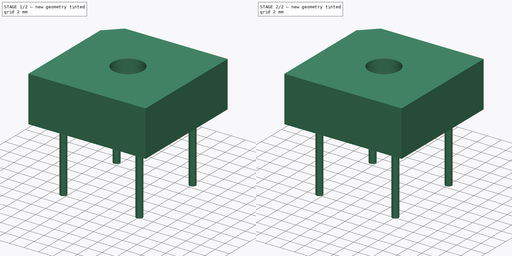
[diagram: build sequence overview — one tinted view per stage of 2, left to right]
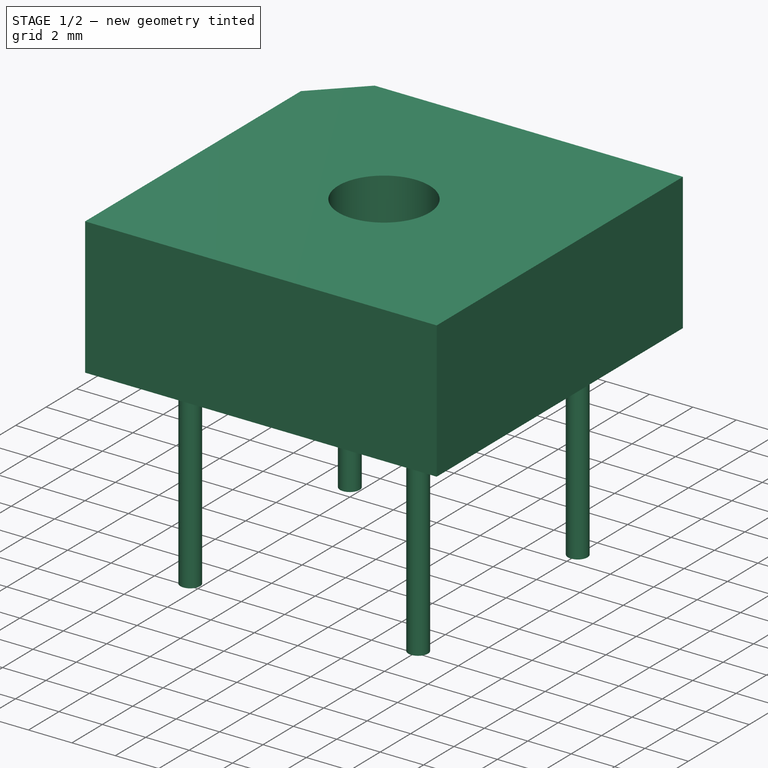
[diagram: stage 1 of 2 — iso view after this stage's code; geometry added in this stage tinted green]
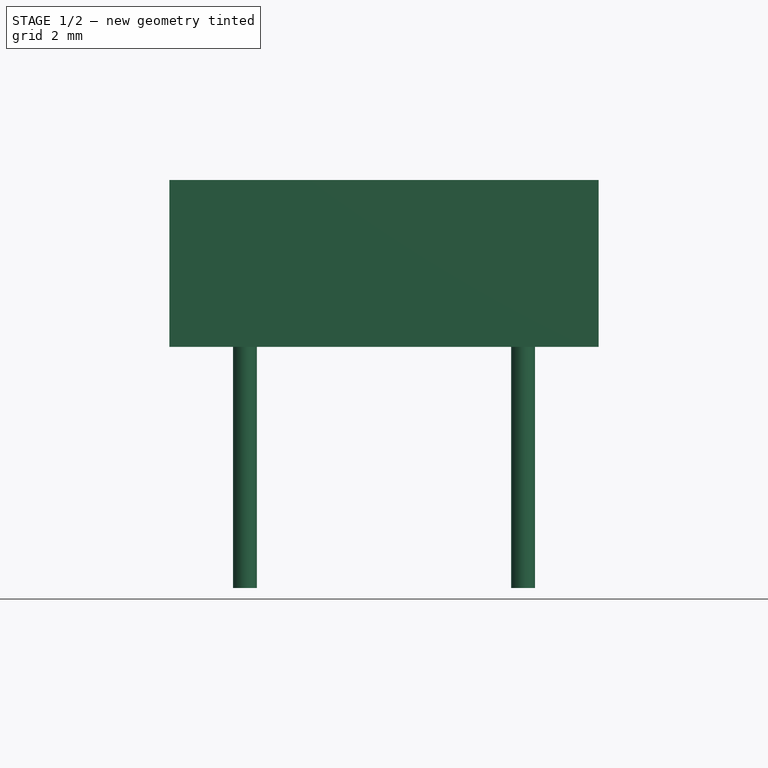
[diagram: stage 1 of 2 — front view after this stage's code; geometry added in this stage tinted green]
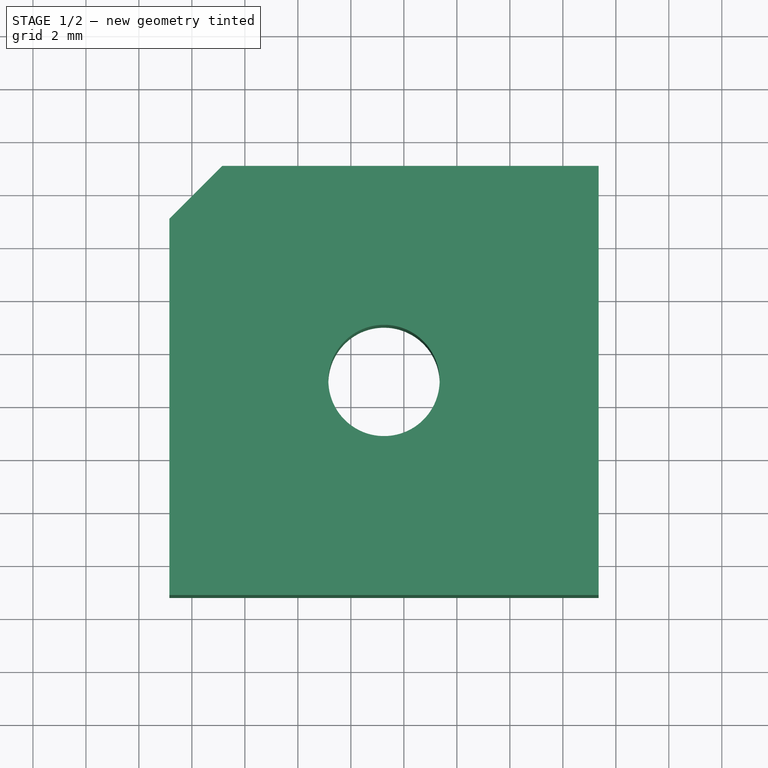
[diagram: stage 1 of 2 — top view after this stage's code; geometry added in this stage tinted green]
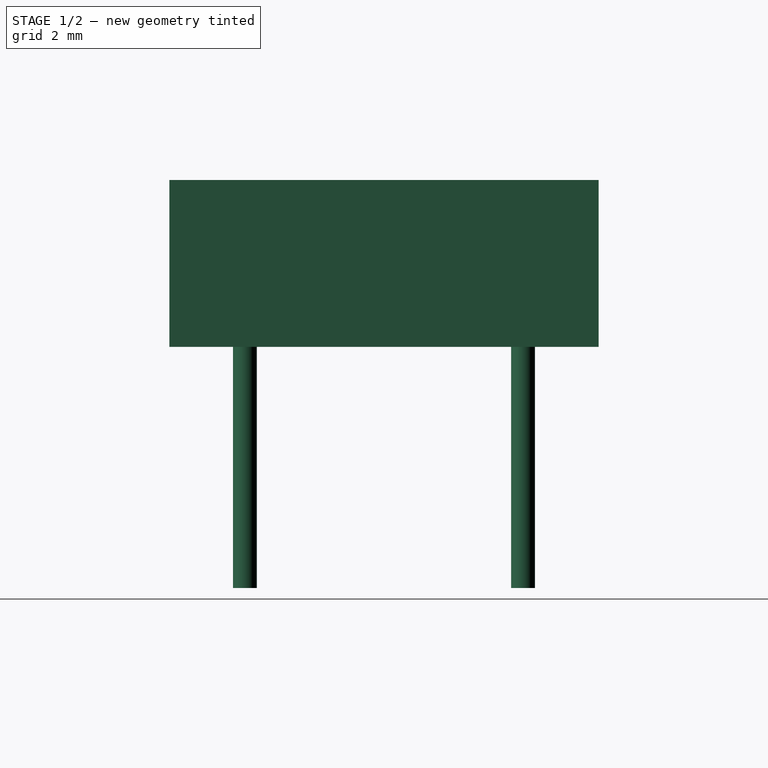
[diagram: stage 1 of 2 — right view after this stage's code; geometry added in this stage tinted green]
FCSTD DOCUMENT  (FreeCAD 0.16R6712 (Git))
Label: Diode_Bridge_Vishay_KBPC1
License: All rights reserved
LicenseURL: http://en.wikipedia.org/wiki/All_rights_reserved
objects: Part::Feature×3, Sketcher::SketchObject×2, PartDesign::Pad×2, App::DocumentObjectGroup×1, Part::MultiFuse×1
note: 10 computed .brp shape members not serialized (recipe doc carries the construction recipe); baked Part::Feature solids carry a one-line shape summary decoded from their .brp

FEATURE [Sketcher::SketchObject] Sketch
  Placement = pos=(0,0,1) rot=(0,0,1;0rad)
  sketch-geometry (8):
    g0: Circle CenterX=0 CenterY=0 CenterZ=0 NormalX=0 NormalY=0 NormalZ=1 Radius=0.45
    g1: Circle CenterX=10.5 CenterY=0 CenterZ=0 NormalX=0 NormalY=0 NormalZ=1 Radius=0.45
    g2: Circle CenterX=0 CenterY=-10.5 CenterZ=0 NormalX=0 NormalY=0 NormalZ=1 Radius=0.45
    g3: LineSegment [constr] StartX=0 StartY=0 StartZ=0 EndX=10.5 EndY=0 EndZ=0
    g4: LineSegment [constr] StartX=10.5 StartY=0 StartZ=0 EndX=10.5 EndY=-10.5 EndZ=0
    g5: LineSegment [constr] StartX=10.5 StartY=-10.5 StartZ=0 EndX=0 EndY=-10.5 EndZ=0
    g6: LineSegment [constr] StartX=0 StartY=-10.5 StartZ=0 EndX=0 EndY=0 EndZ=0
    g7: Circle CenterX=10.5 CenterY=-10.5 CenterZ=0 NormalX=0 NormalY=0 NormalZ=1 Radius=0.45
  constraints (21):
    c: Coincident(g0,g-1)
    c: PointOnObject(g1,g-1)
    c: PointOnObject(g2,g-2)
    c: Coincident(g3,g4)
    c: Coincident(g4,g5)
    c: Coincident(g5,g6)
    c: Coincident(g6,g3)
    c: Horizontal(g3)
    c: Horizontal(g5)
    c: Vertical(g4)
    c: Vertical(g6)
    c: Coincident(g3,g-1)
    c: Coincident(g1,g3)
    c: Coincident(g2,g5)
    c: Coincident(g7,g4)
    c: Equal(g7,g1)
    c: Equal(g1,g0)
    c: Equal(g0,g2)
    c: Radius(g1) = 0.45
    c: DistanceX(g3,g3) = 10.5
    c: DistanceY(g6,g6) = 10.5
FEATURE [PartDesign::Pad] Pad
  Length = 10
  Length2 = 100
  Placement = pos=(0,0,1) rot=(0,0,1;0rad)
  Reversed = true
  Sketch = -> Sketch
  Type = 0
FEATURE [Part::Feature] FusionAxisZ1  label="Z"
  shape: bbox 0.8 x 0.8 x 14 mm, 8 faces (baked)
FEATURE [Part::Feature] FusionAxisY1  label="Y"
  Placement = pos=(0,0,0.05) rot=(-1,0,0;1.5708rad)
  shape: bbox 0.8 x 14 x 0.8 mm, 8 faces (baked)
FEATURE [Part::Feature] FusionAxisX1  label="X"
  Placement = pos=(0,-0.05,0) rot=(0,1,0;1.5708rad)
  shape: bbox 14 x 0.8 x 0.8 mm, 8 faces (baked)
FEATURE [App::DocumentObjectGroup] axis
  Group = -> [FusionAxisZ1,FusionAxisY1,FusionAxisX1]
FEATURE [Sketcher::SketchObject] Sketch001
  Placement = pos=(0,0,0.1) rot=(0,0,1;0rad)
  expr: Constraints[13] = (16.2 - 10.5) / 2
  expr: Constraints[14] = (16.2 - 10.5) / 2
  sketch-geometry (8):
    g0: LineSegment StartX=-2.85 StartY=0.85 StartZ=0 EndX=-0.85 EndY=2.85 EndZ=0
    g1: LineSegment StartX=-0.85 StartY=2.85 StartZ=0 EndX=13.35 EndY=2.85 EndZ=0
    g2: LineSegment StartX=13.35 StartY=2.85 StartZ=0 EndX=13.35 EndY=-13.35 EndZ=0
    g3: LineSegment StartX=13.35 StartY=-13.35 StartZ=0 EndX=-2.85 EndY=-13.35 EndZ=0
    g4: LineSegment StartX=-2.85 StartY=-13.35 StartZ=0 EndX=-2.85 EndY=0.85 EndZ=0
    g5: LineSegment [constr] StartX=0 StartY=0 StartZ=0 EndX=13.35 EndY=-13.35 EndZ=0
    g6: LineSegment [constr] StartX=-2.85 StartY=-13.35 StartZ=0 EndX=13.35 EndY=2.85 EndZ=0
    g7: Circle CenterX=5.25 CenterY=-5.25 CenterZ=0 NormalX=0 NormalY=0 NormalZ=1 Radius=2.1
  constraints (22):
    c: Coincident(g1,g0)
    c: Horizontal(g1)
    c: Coincident(g2,g1)
    c: Vertical(g2)
    c: Coincident(g3,g2)
    c: Horizontal(g3)
    c: Coincident(g4,g3)
    c: Coincident(g4,g0)
    c: Vertical(g4)
    c: DistanceY(g2,g2) = 16.2
    c: Equal(g3,g2)
    c: Angle(g0,g1) = 2.35619
    c: DistanceY(g0,g0) = 2
    c: DistanceX(g0,g-1) = 2.85
    c: DistanceY(g-1,g0) = 2.85
    c: Coincident(g5,g-1)
    c: Coincident(g5,g2)
    c: Coincident(g6,g1)
    c: Coincident(g6,g3)
    c: PointOnObject(g7,g6)
    c: PointOnObject(g7,g5)
    c: Radius(g7) = 2.1
FEATURE [PartDesign::Pad] Pad001
  Length = 6.3
  Length2 = 100
  Placement = pos=(0,0,0.1) rot=(0,0,1;0rad)
  Sketch = -> Sketch001
  Type = 0
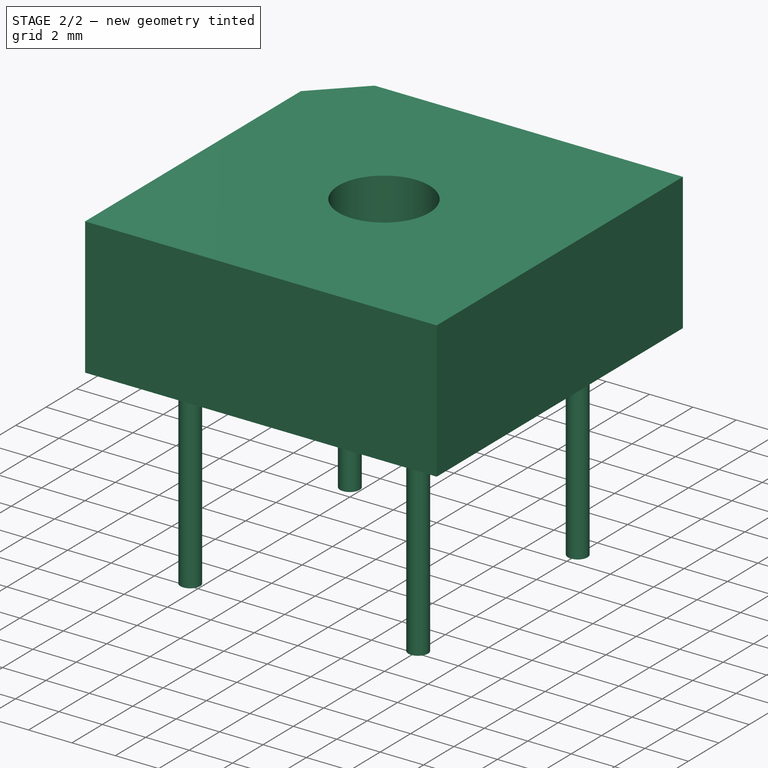
[diagram: stage 2 of 2 — iso view after this stage's code; geometry added in this stage tinted green]
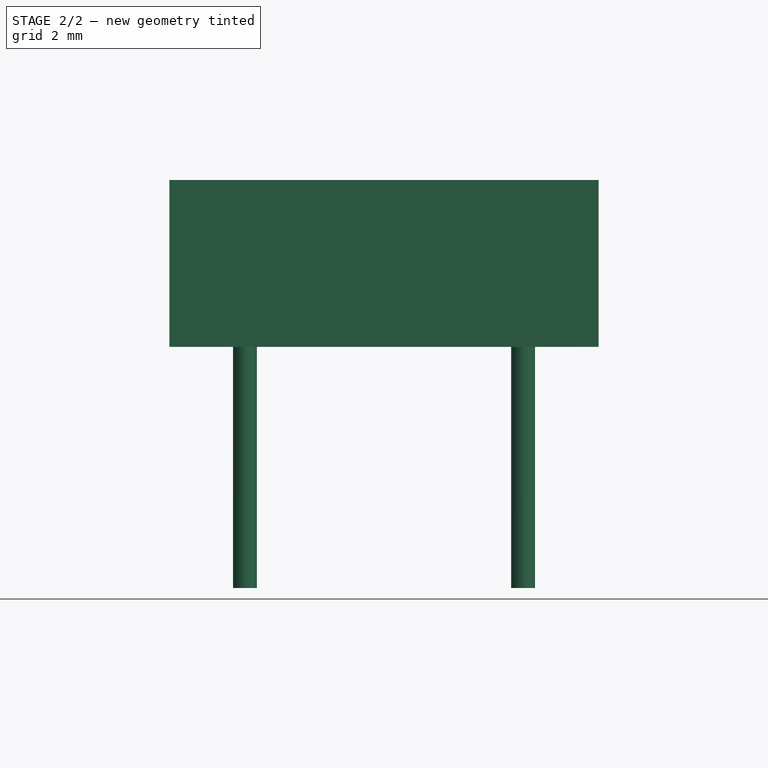
[diagram: stage 2 of 2 — front view after this stage's code; geometry added in this stage tinted green]
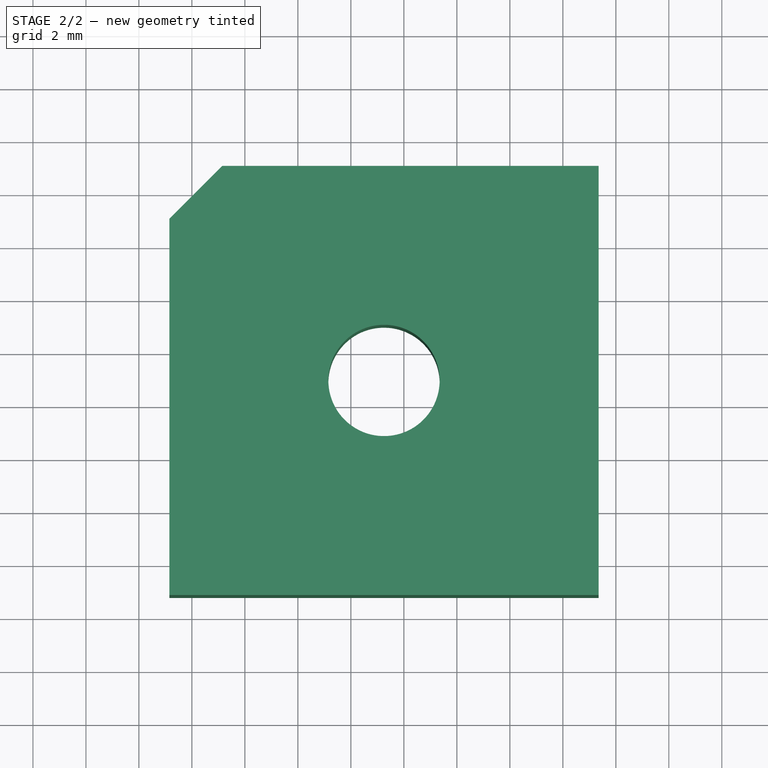
[diagram: stage 2 of 2 — top view after this stage's code; geometry added in this stage tinted green]
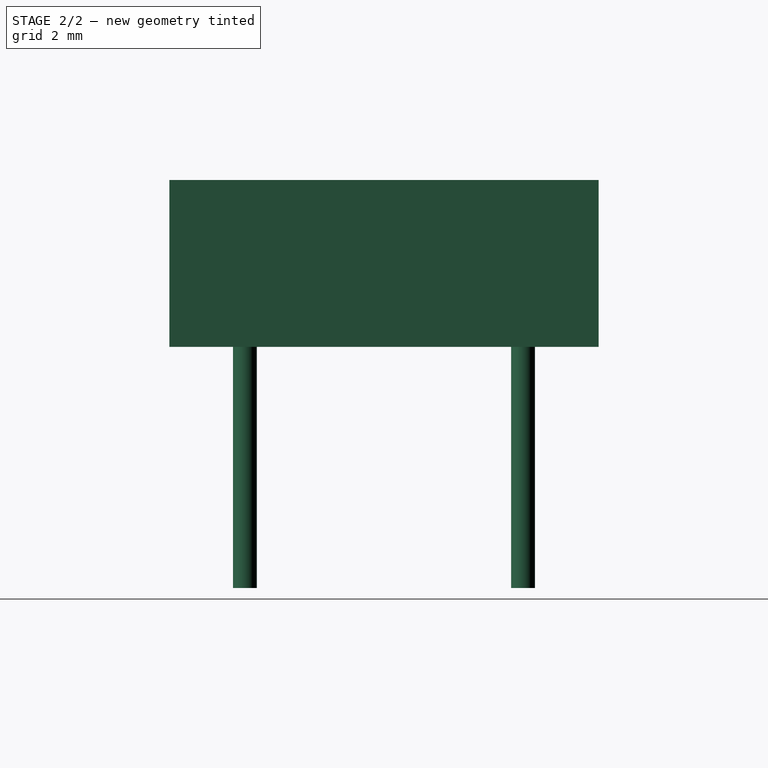
[diagram: stage 2 of 2 — right view after this stage's code; geometry added in this stage tinted green]
FEATURE [Part::MultiFuse] Pad001_mp_cp  label="Diode_Bridge_Vishay_KBPC1"
  Shapes = -> [Pad001,Pad]
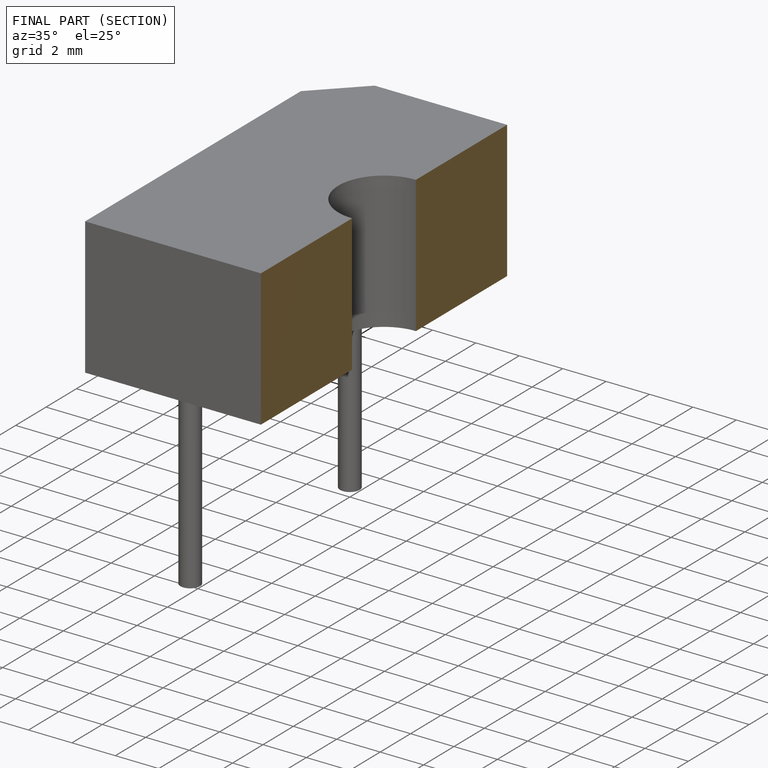
[diagram: finished part — half-section view (interior)]
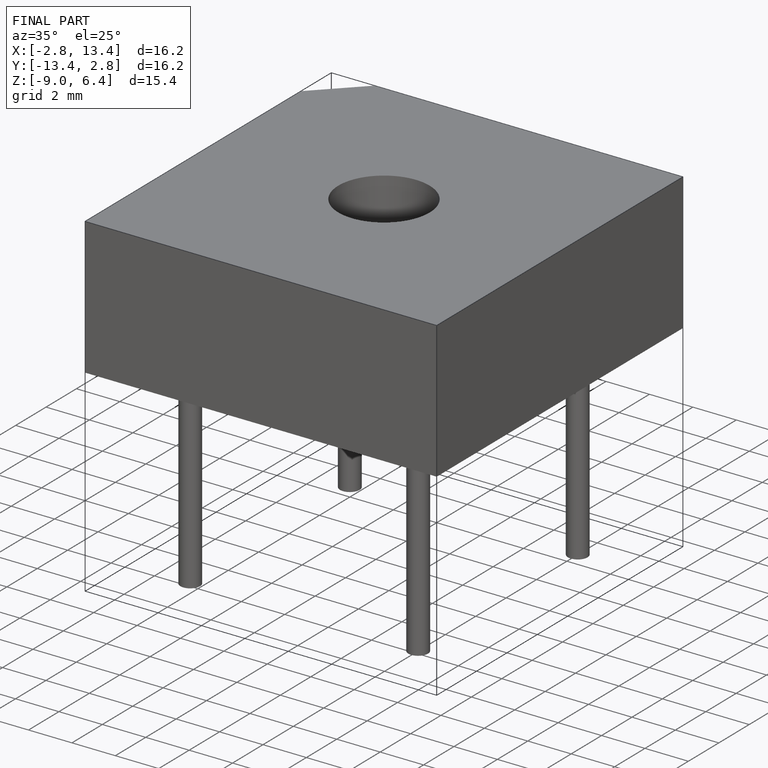
[diagram: finished part — iso view with bounding-box wireframe]
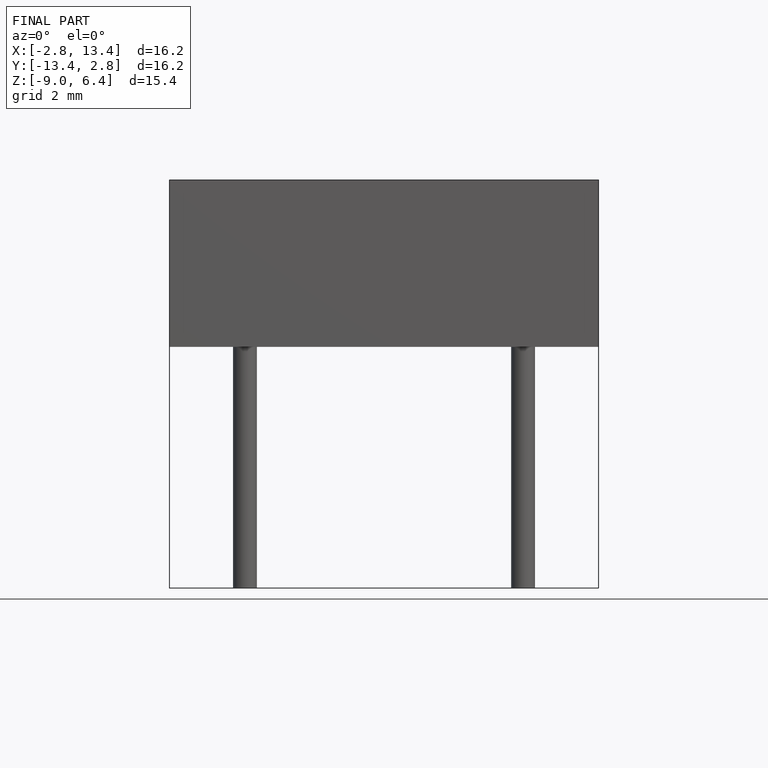
[diagram: finished part — front view with bounding-box wireframe]
